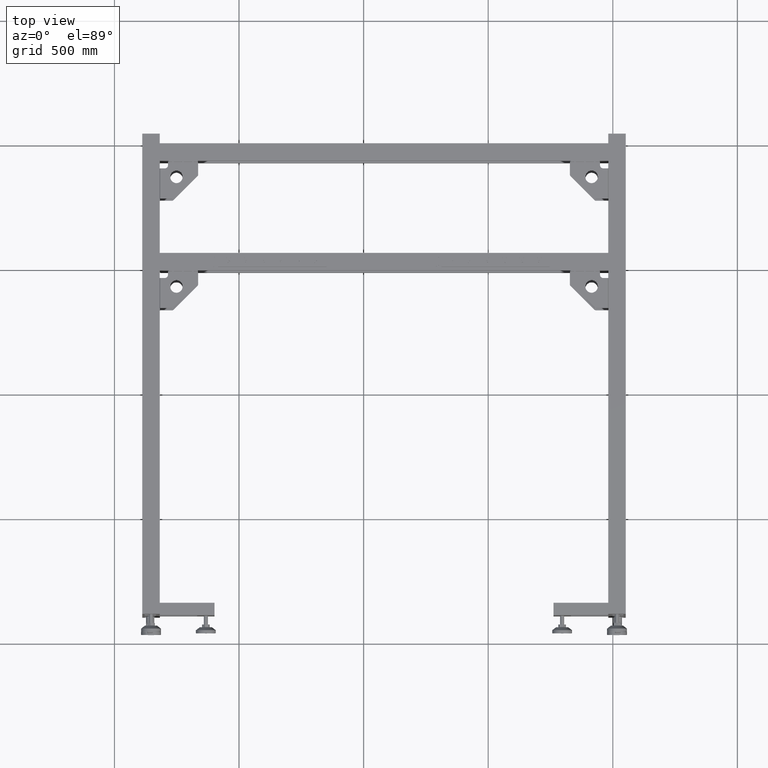
[diagram: clean part render]
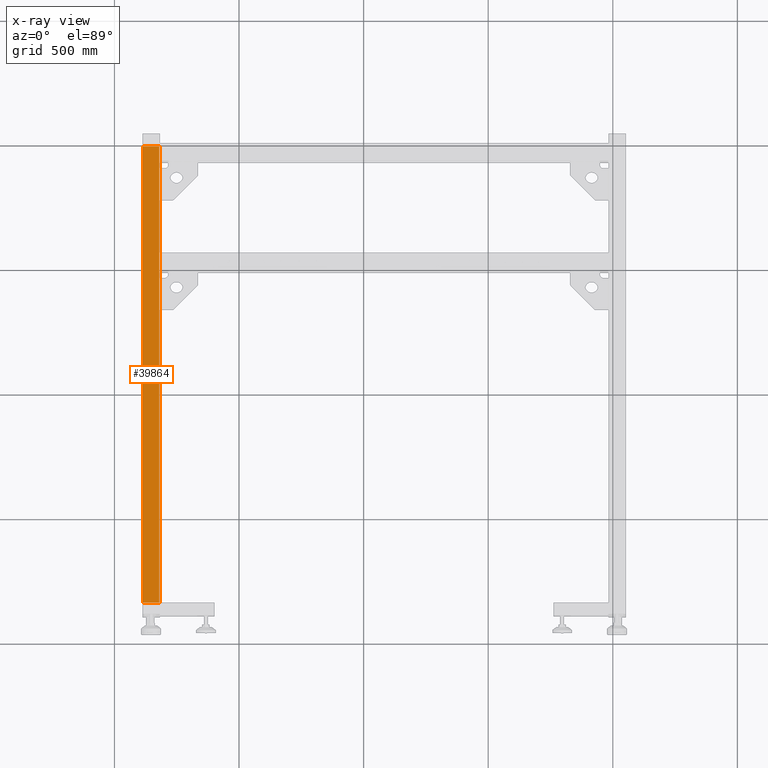
[diagram: x-ray — body ghosted, one internal face saturated and labeled with its STEP entity id]
A machine part, top view, then the same camera in x-ray: the body is ghosted and one INTERNAL B-rep face — a face not visible from any outside direction — is saturated and labeled: STEP entity #39864.
In plain terms, the highlighted planar face has unit normal (-0, 0, 1).
Its self-contained STEP definition (entity closure, byte-faithful):
#2169 = CARTESIAN_POINT ( 'NONE',  ( -1386.172487437185055, 986.4410804020136538, 201.9999999999999716 ) ) ;
#3138 = CARTESIAN_POINT ( 'NONE',  ( -1320.172487437185282, -844.5589195979888473, 201.9999999999999716 ) ) ;
#3911 = LINE ( 'NONE', #22276, #47678 ) ;
#4815 = LINE ( 'NONE', #71059, #74533 ) ;
#5103 = CARTESIAN_POINT ( 'NONE',  ( -1386.172487437185055, -844.5589195979888473, 201.9999999999999716 ) ) ;
#5398 = VERTEX_POINT ( 'NONE', #5103 ) ;
#10526 = CARTESIAN_POINT ( 'NONE',  ( -1386.172487437185055, 986.4410804020136538, 201.9999999999999716 ) ) ;
#10581 = ORIENTED_EDGE ( 'NONE', *, *, #25422, .F. ) ;
#13930 = LINE ( 'NONE', #38270, #26019 ) ;
#22276 = CARTESIAN_POINT ( 'NONE',  ( -1386.172487437185055, 986.4410804020136538, 201.9999999999999716 ) ) ;
#22495 = PLANE ( 'NONE',  #25043 ) ;
#24929 = DIRECTION ( 'NONE',  ( -1.000000000000000078E-15, -1.000000000000000000, -0.000000000000000000 ) ) ;
#25043 = AXIS2_PLACEMENT_3D ( 'NONE', #10526, #34081, #34875 ) ;
#25312 = CARTESIAN_POINT ( 'NONE',  ( -1320.172487437185282, 986.4410804020109254, 201.9999999999999716 ) ) ;
#25422 = EDGE_CURVE ( 'NONE', #78822, #76981, #56047, .T. ) ;
#25484 = DIRECTION ( 'NONE',  ( 1.000000000000000000, 0.000000000000000000, 0.000000000000000000 ) ) ;
#26019 = VECTOR ( 'NONE', #25484, 1000.000000000000000 ) ;
#28064 = FACE_OUTER_BOUND ( 'NONE', #30749, .T. ) ;
#30749 = EDGE_LOOP ( 'NONE', ( #47011, #54800, #10581, #45846 ) ) ;
#34081 = DIRECTION ( 'NONE',  ( -0.000000000000000000, 0.000000000000000000, 1.000000000000000000 ) ) ;
#34875 = DIRECTION ( 'NONE',  ( 1.000000000000000000, 0.000000000000000000, 0.000000000000000000 ) ) ;
#37358 = EDGE_CURVE ( 'NONE', #59364, #5398, #4815, .T. ) ;
#37684 = EDGE_CURVE ( 'NONE', #5398, #76981, #13930, .T. ) ;
#37851 = EDGE_CURVE ( 'NONE', #78822, #59364, #3911, .T. ) ;
#38270 = CARTESIAN_POINT ( 'NONE',  ( -1386.172487437185055, -844.5589195979888473, 201.9999999999999716 ) ) ;
#39864 = ADVANCED_FACE ( 'NONE', ( #28064 ), #22495, .T. ) ;
#45846 = ORIENTED_EDGE ( 'NONE', *, *, #37851, .T. ) ;
#47011 = ORIENTED_EDGE ( 'NONE', *, *, #37358, .T. ) ;
#47678 = VECTOR ( 'NONE', #70965, 1000.000000000000000 ) ;
#54800 = ORIENTED_EDGE ( 'NONE', *, *, #37684, .T. ) ;
#55275 = CARTESIAN_POINT ( 'NONE',  ( -1320.172487437185282, 986.4410804020136538, 201.9999999999999716 ) ) ;
#56047 = LINE ( 'NONE', #55275, #76653 ) ;
#59364 = VERTEX_POINT ( 'NONE', #2169 ) ;
#64694 = DIRECTION ( 'NONE',  ( -1.000000000000000078E-15, -1.000000000000000000, -0.000000000000000000 ) ) ;
#70965 = DIRECTION ( 'NONE',  ( -1.000000000000000000, 1.682156097916908074E-15, -0.000000000000000000 ) ) ;
#71059 = CARTESIAN_POINT ( 'NONE',  ( -1386.172487437185055, 986.4410804020136538, 201.9999999999999716 ) ) ;
#74533 = VECTOR ( 'NONE', #64694, 1000.000000000000000 ) ;
#76653 = VECTOR ( 'NONE', #24929, 1000.000000000000000 ) ;
#76981 = VERTEX_POINT ( 'NONE', #3138 ) ;
#78822 = VERTEX_POINT ( 'NONE', #25312 ) ;